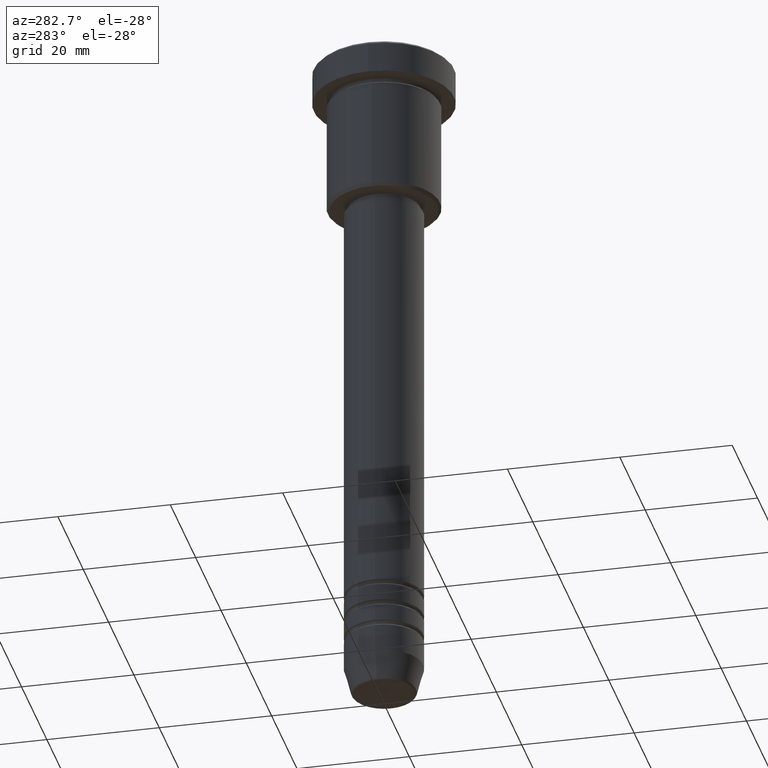
[diagram: clean part render]
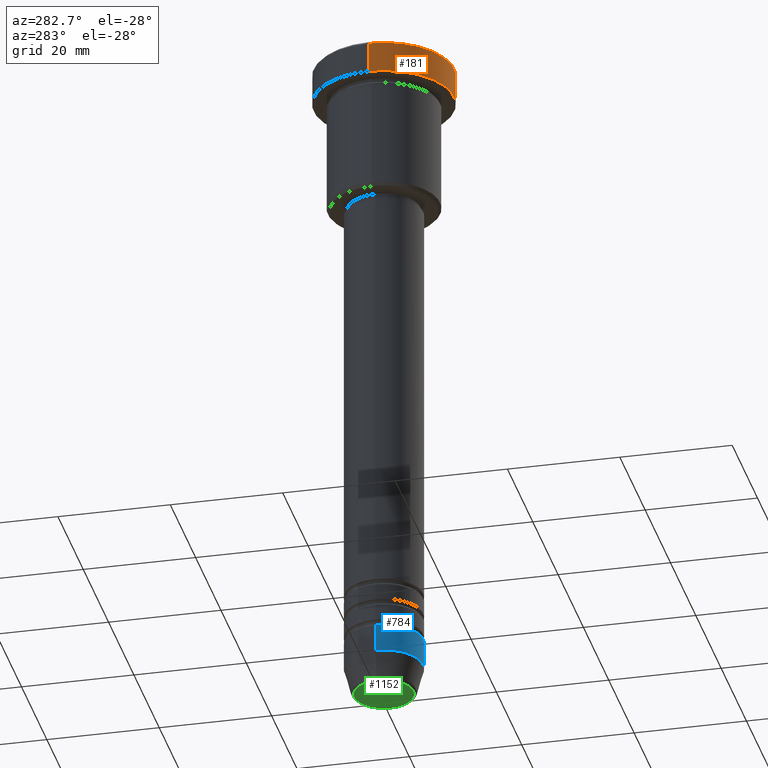
[diagram: same view with three faces highlighted in distinct colors, each labeled with its STEP entity id]
A machine part, auxiliary view with three faces highlighted in distinct colors.
Their STEP definitions:

[orange] entity #181 — the highlighted cylindrical surface (partial cylindrical patch) has radius 12.5 mm, axis along (-0, -0, 1).
#54 = CARTESIAN_POINT ( 'NONE',  ( 12.50000000000000000, 0.000000000000000000, -0.5000000000000334177 ) ) ;
#55 = ORIENTED_EDGE ( 'NONE', *, *, #840, .T. ) ;
#67 = CARTESIAN_POINT ( 'NONE',  ( 12.50000000000000000, 0.000000000000000000, -5.999999999999996447 ) ) ;
#83 = DIRECTION ( 'NONE',  ( 1.000000000000000000, 0.000000000000000000, 0.000000000000000000 ) ) ;
#86 = DIRECTION ( 'NONE',  ( 0.000000000000000000, 0.000000000000000000, -1.000000000000000000 ) ) ;
#163 = CARTESIAN_POINT ( 'NONE',  ( -12.50000000000000000, 1.530808498934191521E-15, -0.5000000000000334177 ) ) ;
#165 = CIRCLE ( 'NONE', #892, 12.50000000000000000 ) ;
#181 = ADVANCED_FACE ( 'NONE', ( #687 ), #1042, .T. ) ;
#215 = DIRECTION ( 'NONE',  ( -0.000000000000000000, -0.000000000000000000, 1.000000000000000000 ) ) ;
#226 = LINE ( 'NONE', #601, #741 ) ;
#259 = EDGE_LOOP ( 'NONE', ( #808, #1004, #55, #969 ) ) ;
#440 = EDGE_CURVE ( 'NONE', #882, #876, #1052, .T. ) ;
#443 = AXIS2_PLACEMENT_3D ( 'NONE', #906, #86, #722 ) ;
#456 = VERTEX_POINT ( 'NONE', #67 ) ;
#536 = CARTESIAN_POINT ( 'NONE',  ( 0.000000000000000000, 0.000000000000000000, -5.999999999999996447 ) ) ;
#593 = DIRECTION ( 'NONE',  ( 1.000000000000000000, 0.000000000000000000, 0.000000000000000000 ) ) ;
#598 = DIRECTION ( 'NONE',  ( -0.000000000000000000, -0.000000000000000000, 1.000000000000000000 ) ) ;
#601 = CARTESIAN_POINT ( 'NONE',  ( 12.50000000000000000, 0.000000000000000000, 0.000000000000000000 ) ) ;
#605 = CARTESIAN_POINT ( 'NONE',  ( 0.000000000000000000, 0.000000000000000000, 0.000000000000000000 ) ) ;
#687 = FACE_OUTER_BOUND ( 'NONE', #259, .T. ) ;
#699 = EDGE_CURVE ( 'NONE', #836, #456, #165, .T. ) ;
#722 = DIRECTION ( 'NONE',  ( 1.000000000000000000, 0.000000000000000000, 0.000000000000000000 ) ) ;
#741 = VECTOR ( 'NONE', #1069, 1000.000000000000000 ) ;
#766 = CARTESIAN_POINT ( 'NONE',  ( -12.50000000000000000, 1.530808498934191521E-15, -5.999999999999996447 ) ) ;
#770 = LINE ( 'NONE', #1032, #983 ) ;
#808 = ORIENTED_EDGE ( 'NONE', *, *, #1125, .F. ) ;
#836 = VERTEX_POINT ( 'NONE', #766 ) ;
#840 = EDGE_CURVE ( 'NONE', #456, #882, #226, .T. ) ;
#876 = VERTEX_POINT ( 'NONE', #163 ) ;
#882 = VERTEX_POINT ( 'NONE', #54 ) ;
#892 = AXIS2_PLACEMENT_3D ( 'NONE', #536, #1071, #83 ) ;
#906 = CARTESIAN_POINT ( 'NONE',  ( 0.000000000000000000, 0.000000000000000000, -0.5000000000000334177 ) ) ;
#969 = ORIENTED_EDGE ( 'NONE', *, *, #440, .T. ) ;
#983 = VECTOR ( 'NONE', #215, 1000.000000000000000 ) ;
#1004 = ORIENTED_EDGE ( 'NONE', *, *, #699, .T. ) ;
#1032 = CARTESIAN_POINT ( 'NONE',  ( -12.50000000000000000, 1.530808498934191521E-15, 0.000000000000000000 ) ) ;
#1042 = CYLINDRICAL_SURFACE ( 'NONE', #1151, 12.50000000000000000 ) ;
#1052 = CIRCLE ( 'NONE', #443, 12.50000000000000000 ) ;
#1069 = DIRECTION ( 'NONE',  ( -0.000000000000000000, -0.000000000000000000, 1.000000000000000000 ) ) ;
#1071 = DIRECTION ( 'NONE',  ( -0.000000000000000000, -0.000000000000000000, 1.000000000000000000 ) ) ;
#1125 = EDGE_CURVE ( 'NONE', #836, #876, #770, .T. ) ;
#1151 = AXIS2_PLACEMENT_3D ( 'NONE', #605, #598, #593 ) ;

[blue] entity #784 — the highlighted cylindrical surface (partial cylindrical patch) has radius 7 mm, axis along (-0, -0, 1).
#8 = AXIS2_PLACEMENT_3D ( 'NONE', #457, #922, #375 ) ;
#90 = CARTESIAN_POINT ( 'NONE',  ( 7.000000000000000000, 0.000000000000000000, 0.000000000000000000 ) ) ;
#140 = CIRCLE ( 'NONE', #837, 7.000000000000000000 ) ;
#146 = LINE ( 'NONE', #253, #308 ) ;
#153 = LINE ( 'NONE', #90, #624 ) ;
#217 = EDGE_CURVE ( 'NONE', #1182, #517, #153, .T. ) ;
#253 = CARTESIAN_POINT ( 'NONE',  ( -7.000000000000000000, 8.572527594031473190E-16, 0.000000000000000000 ) ) ;
#254 = EDGE_LOOP ( 'NONE', ( #411, #697, #827, #312 ) ) ;
#264 = DIRECTION ( 'NONE',  ( -0.000000000000000000, -0.000000000000000000, 1.000000000000000000 ) ) ;
#298 = CARTESIAN_POINT ( 'NONE',  ( 0.000000000000000000, 0.000000000000000000, 0.000000000000000000 ) ) ;
#308 = VECTOR ( 'NONE', #619, 1000.000000000000000 ) ;
#312 = ORIENTED_EDGE ( 'NONE', *, *, #487, .F. ) ;
#375 = DIRECTION ( 'NONE',  ( 1.000000000000000000, 0.000000000000000000, 0.000000000000000000 ) ) ;
#389 = CYLINDRICAL_SURFACE ( 'NONE', #1156, 7.000000000000000000 ) ;
#411 = ORIENTED_EDGE ( 'NONE', *, *, #533, .F. ) ;
#457 = CARTESIAN_POINT ( 'NONE',  ( 0.000000000000000000, 0.000000000000000000, -112.0000000000000142 ) ) ;
#481 = CARTESIAN_POINT ( 'NONE',  ( 7.000000000000000000, 0.000000000000000000, -112.0000000000000142 ) ) ;
#487 = EDGE_CURVE ( 'NONE', #515, #517, #797, .T. ) ;
#515 = VERTEX_POINT ( 'NONE', #1067 ) ;
#517 = VERTEX_POINT ( 'NONE', #481 ) ;
#533 = EDGE_CURVE ( 'NONE', #552, #515, #146, .T. ) ;
#552 = VERTEX_POINT ( 'NONE', #855 ) ;
#574 = DIRECTION ( 'NONE',  ( -0.000000000000000000, -0.000000000000000000, 1.000000000000000000 ) ) ;
#619 = DIRECTION ( 'NONE',  ( -0.000000000000000000, -0.000000000000000000, 1.000000000000000000 ) ) ;
#624 = VECTOR ( 'NONE', #264, 1000.000000000000000 ) ;
#671 = CARTESIAN_POINT ( 'NONE',  ( 0.000000000000000000, 0.000000000000000000, -117.0000000000000000 ) ) ;
#697 = ORIENTED_EDGE ( 'NONE', *, *, #1082, .T. ) ;
#784 = ADVANCED_FACE ( 'NONE', ( #930 ), #389, .T. ) ;
#797 = CIRCLE ( 'NONE', #8, 7.000000000000000000 ) ;
#827 = ORIENTED_EDGE ( 'NONE', *, *, #217, .T. ) ;
#837 = AXIS2_PLACEMENT_3D ( 'NONE', #671, #852, #945 ) ;
#852 = DIRECTION ( 'NONE',  ( -0.000000000000000000, -0.000000000000000000, 1.000000000000000000 ) ) ;
#855 = CARTESIAN_POINT ( 'NONE',  ( -7.000000000000000000, 8.572527594031473190E-16, -117.0000000000000000 ) ) ;
#922 = DIRECTION ( 'NONE',  ( -0.000000000000000000, -0.000000000000000000, 1.000000000000000000 ) ) ;
#930 = FACE_OUTER_BOUND ( 'NONE', #254, .T. ) ;
#937 = CARTESIAN_POINT ( 'NONE',  ( 7.000000000000000000, 0.000000000000000000, -117.0000000000000000 ) ) ;
#945 = DIRECTION ( 'NONE',  ( 1.000000000000000000, 0.000000000000000000, 0.000000000000000000 ) ) ;
#1067 = CARTESIAN_POINT ( 'NONE',  ( -7.000000000000000000, 8.572527594031473190E-16, -112.0000000000000142 ) ) ;
#1082 = EDGE_CURVE ( 'NONE', #552, #1182, #140, .T. ) ;
#1117 = DIRECTION ( 'NONE',  ( 1.000000000000000000, 0.000000000000000000, 0.000000000000000000 ) ) ;
#1156 = AXIS2_PLACEMENT_3D ( 'NONE', #298, #574, #1117 ) ;
#1182 = VERTEX_POINT ( 'NONE', #937 ) ;

[green] entity #1152 — the highlighted planar face has unit normal (0, -0, 1).
#26 = AXIS2_PLACEMENT_3D ( 'NONE', #788, #970, #949 ) ;
#125 = EDGE_CURVE ( 'NONE', #1001, #572, #442, .T. ) ;
#135 = CARTESIAN_POINT ( 'NONE',  ( 0.000000000000000000, 0.000000000000000000, -122.0000000000000000 ) ) ;
#169 = CARTESIAN_POINT ( 'NONE',  ( -5.276590543854905668, 6.757689212787771832E-16, -122.0000000000000000 ) ) ;
#184 = ORIENTED_EDGE ( 'NONE', *, *, #357, .T. ) ;
#224 = DIRECTION ( 'NONE',  ( 0.000000000000000000, -0.000000000000000000, 1.000000000000000000 ) ) ;
#230 = DIRECTION ( 'NONE',  ( 1.000000000000000000, 0.000000000000000000, 0.000000000000000000 ) ) ;
#338 = DIRECTION ( 'NONE',  ( 0.000000000000000000, 0.000000000000000000, -1.000000000000000000 ) ) ;
#357 = EDGE_CURVE ( 'NONE', #572, #1001, #1113, .T. ) ;
#442 = CIRCLE ( 'NONE', #659, 5.276590543854905668 ) ;
#486 = PLANE ( 'NONE',  #564 ) ;
#564 = AXIS2_PLACEMENT_3D ( 'NONE', #656, #224, #592 ) ;
#572 = VERTEX_POINT ( 'NONE', #169 ) ;
#592 = DIRECTION ( 'NONE',  ( 1.000000000000000000, 0.000000000000000000, 0.000000000000000000 ) ) ;
#656 = CARTESIAN_POINT ( 'NONE',  ( 0.000000000000000000, 0.000000000000000000, -122.0000000000000000 ) ) ;
#659 = AXIS2_PLACEMENT_3D ( 'NONE', #135, #338, #230 ) ;
#788 = CARTESIAN_POINT ( 'NONE',  ( 0.000000000000000000, 0.000000000000000000, -122.0000000000000000 ) ) ;
#949 = DIRECTION ( 'NONE',  ( 1.000000000000000000, 0.000000000000000000, 0.000000000000000000 ) ) ;
#970 = DIRECTION ( 'NONE',  ( 0.000000000000000000, 0.000000000000000000, -1.000000000000000000 ) ) ;
#1001 = VERTEX_POINT ( 'NONE', #1060 ) ;
#1026 = FACE_OUTER_BOUND ( 'NONE', #1081, .T. ) ;
#1060 = CARTESIAN_POINT ( 'NONE',  ( 5.276590543854905668, 0.000000000000000000, -122.0000000000000000 ) ) ;
#1081 = EDGE_LOOP ( 'NONE', ( #1145, #184 ) ) ;
#1113 = CIRCLE ( 'NONE', #26, 5.276590543854905668 ) ;
#1145 = ORIENTED_EDGE ( 'NONE', *, *, #125, .T. ) ;
#1152 = ADVANCED_FACE ( 'NONE', ( #1026 ), #486, .F. ) ;